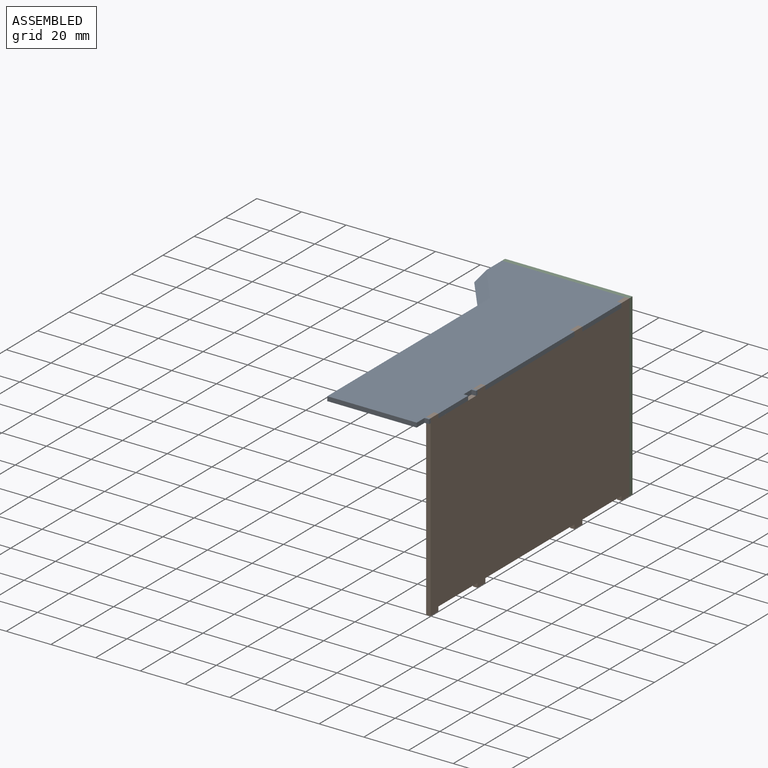
[diagram: assembled view]
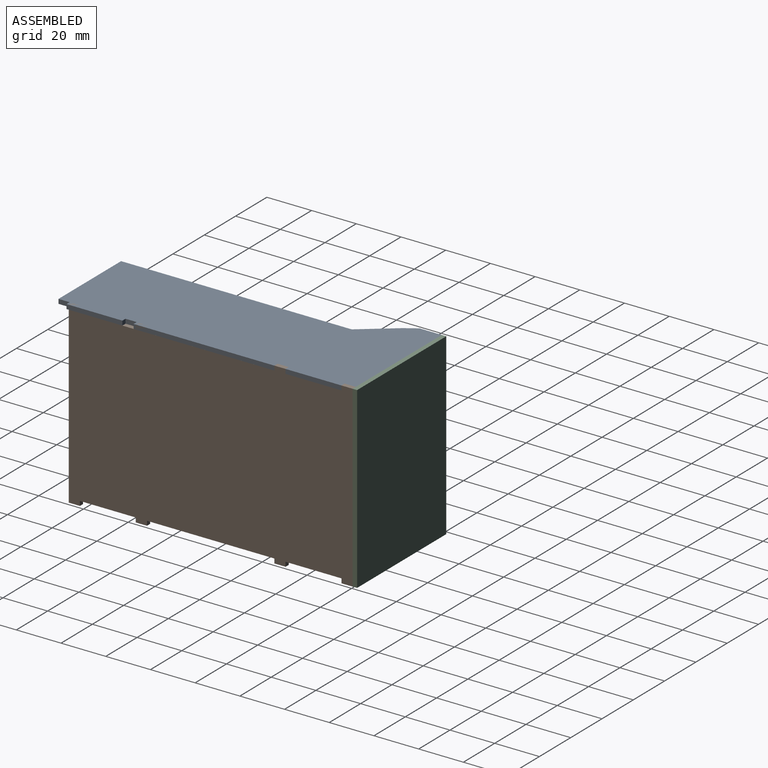
[diagram: assembled view, second angle]
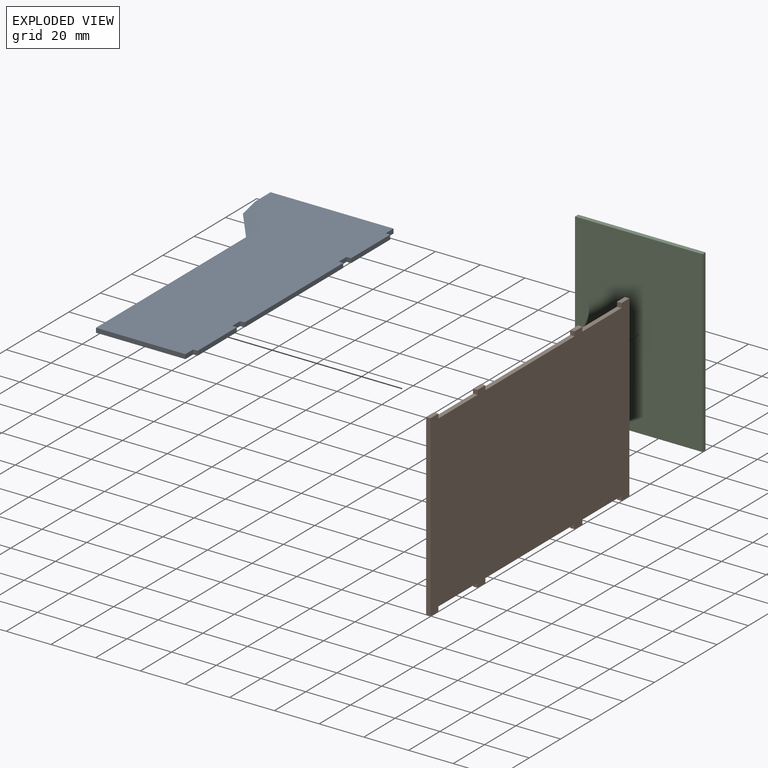
[diagram: exploded view]
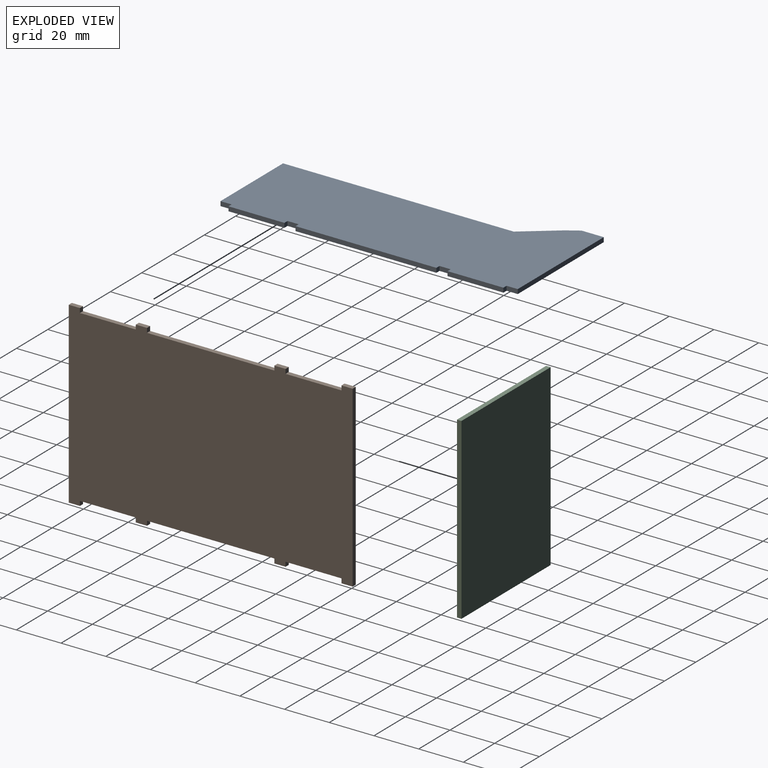
[diagram: exploded view, second angle]
ASSEMBLY  parts=3 mates=2
PART A: 25 faces, bbox 57x133x4 mm
  f0: plane 104.07x2mm, normal (-1,0,0), area 200.3mm2, adj f1,f17,f18,f24
  f1: plane 40x2mm, normal (0,-1,0), area 80mm2, adj f0,f2,f17,f18
  f2: plane 5x2mm, normal (1,0,0), area 10mm2, adj f1,f3,f17,f18
  f3: plane 2x2mm, normal (0,-1,0), area 4mm2, adj f2,f4,f17,f18
  f4: plane 25x2mm, normal (1,0,0), area 50mm2, adj f3,f5,f17,f18
  f5: plane 2x2mm, normal (0,1,0), area 4mm2, adj f4,f6,f17,f18
  f6: plane 5x2mm, normal (1,0,0), area 10mm2, adj f5,f7,f17,f18
  f7: plane 2x2mm, normal (0,-1,0), area 4mm2, adj f6,f8,f17,f18
  f8: plane 63x2mm, normal (1,0,0), area 126mm2, adj f7,f9,f17,f18
  f9: plane 2x2mm, normal (0,1,0), area 4mm2, adj f8,f10,f17,f18
  f10: plane 5x2mm, normal (1,0,0), area 10mm2, adj f9,f11,f17,f18
  f11: plane 2x2mm, normal (0,-1,0), area 4mm2, adj f10,f12,f17,f18
  f12: plane 25x2mm, normal (1,0,0), area 50mm2, adj f11,f13,f17,f18
  f13: plane 2x2mm, normal (0,1,0), area 4mm2, adj f12,f14,f17,f18
  f14: plane 5x2mm, normal (1,0,0), area 10mm2, adj f13,f15,f17,f18
  f15: plane 55x2mm, normal (0,1,0), area 110mm2, adj f14,f16,f17,f18
  f16: plane 17.72x2mm, normal (-1,0,0), area 27.7mm2, adj f15,f17,f18,f24
  f17: plane 133x57mm, normal (0,0,1), area 5837.5mm2, adj f0,f1,f2,f3,f4,f5,f6,f7
  f18: plane 133x57mm, normal (0,0,-1), area 5915.1mm2, adj f0,f1,f2,f3,f4,f5,f6,f7
  f19: cylinder r=2.5mm len=5mm, axis (0,0,1), area 31.4mm2, adj f18,f20
  f20: plane 5x5mm, normal (0,0,-1), area 19.6mm2, adj f19
  f21: cylinder r=2.5mm len=5mm, axis (0,0,1), area 30.6mm2, adj f18,f22,f23
  f22: cylinder r=2.5mm len=2mm, axis (0,0,1), area 0.8mm2, adj f18,f21,f23
  f23: plane 5x5mm, normal (0,0,-1), area 19.6mm2, adj f21,f22
  f24: plane 26.79x15mm, normal (-0.3,-0.24,0.92), area 126.5mm2, adj f0,f16,f17,f18
PART B: 30 faces, bbox 80x127x2 mm
  f0: plane 2x2mm, normal (0,1,0), area 4mm2, adj f1,f27,f28,f29
  f1: plane 57x2mm, normal (1,0,0), area 114mm2, adj f0,f2,f28,f29
  f2: plane 2x2mm, normal (0,-1,0), area 4mm2, adj f1,f3,f28,f29
  f3: plane 5x2mm, normal (1,0,0), area 10mm2, adj f2,f4,f28,f29
  f4: plane 2x2mm, normal (0,1,0), area 4mm2, adj f3,f5,f28,f29
  f5: plane 25x2mm, normal (1,0,0), area 50mm2, adj f4,f6,f28,f29
  f6: plane 2x2mm, normal (0,-1,0), area 4mm2, adj f5,f7,f28,f29
  f7: plane 5x2mm, normal (1,0,0), area 10mm2, adj f6,f8,f28,f29
  f8: plane 80x2mm, normal (0,1,0), area 160mm2, adj f7,f9,f28,f29
  f9: plane 5x2mm, normal (-1,0,0), area 10mm2, adj f8,f10,f28,f29
  f10: plane 2x2mm, normal (0,-1,0), area 4mm2, adj f9,f11,f28,f29
  f11: plane 25x2mm, normal (-1,0,0), area 50mm2, adj f10,f12,f28,f29
  f12: plane 2x2mm, normal (0,1,0), area 4mm2, adj f11,f13,f28,f29
  f13: plane 5x2mm, normal (-1,0,0), area 10mm2, adj f12,f14,f28,f29
  f14: plane 2x2mm, normal (0,-1,0), area 4mm2, adj f13,f15,f28,f29
  f15: plane 57x2mm, normal (-1,0,0), area 114mm2, adj f14,f16,f28,f29
  f16: plane 2x2mm, normal (0,1,0), area 4mm2, adj f15,f17,f28,f29
  f17: plane 5x2mm, normal (-1,0,0), area 10mm2, adj f16,f18,f28,f29
  f18: plane 2x2mm, normal (0,-1,0), area 4mm2, adj f17,f19,f28,f29
  f19: plane 25x2mm, normal (-1,0,0), area 50mm2, adj f18,f20,f28,f29
  f20: plane 2x2mm, normal (0,1,0), area 4mm2, adj f19,f21,f28,f29
  f21: plane 5x2mm, normal (-1,0,0), area 10mm2, adj f20,f22,f28,f29
  f22: plane 80x2mm, normal (0,-1,0), area 160mm2, adj f21,f23,f28,f29
  f23: plane 5x2mm, normal (1,0,0), area 10mm2, adj f22,f24,f28,f29
  f24: plane 2x2mm, normal (0,1,0), area 4mm2, adj f23,f25,f28,f29
  f25: plane 25x2mm, normal (1,0,0), area 50mm2, adj f24,f26,f28,f29
  f26: plane 2x2mm, normal (0,-1,0), area 4mm2, adj f25,f27,f28,f29
  f27: plane 5x2mm, normal (1,0,0), area 10mm2, adj f0,f26,f28,f29
  f28: plane 127x80mm, normal (0,0,1), area 9732mm2, adj f0,f1,f2,f3,f4,f5,f6,f7
  f29: plane 127x80mm, normal (0,0,-1), area 9732mm2, adj f0,f1,f2,f3,f4,f5,f6,f7
PART C: 6 faces, bbox 80x57x2 mm
  f0: plane 80x2mm, normal (0,1,0), area 160mm2, adj f1,f3,f4,f5
  f1: plane 57x2mm, normal (-1,0,0), area 114mm2, adj f0,f2,f4,f5
  f2: plane 80x2mm, normal (0,-1,0), area 160mm2, adj f1,f3,f4,f5
  f3: plane 57x2mm, normal (1,0,0), area 114mm2, adj f0,f2,f4,f5
  f4: plane 80x57mm, normal (0,0,1), area 4560mm2, adj f0,f1,f2,f3
  f5: plane 80x57mm, normal (0,0,-1), area 4560mm2, adj f0,f1,f2,f3
PLACE A t=(-14.03,-61.48,0)mm
PLACE B rot(axis=(0,1,0),90deg) t=(20.97,-13.69,-35.18)mm
PLACE C rot(axis=(0.58,0.58,-0.58),120deg) t=(-0.72,64.52,-32.57)mm
MATE fastened B.f29 <-> A.f14  axis (-1,0,0) through (20.97,62.52,2)mm
MATE fastened C.f4 <-> B.f8  axis (0,-1,0) through (22.97,62.52,2)mm
